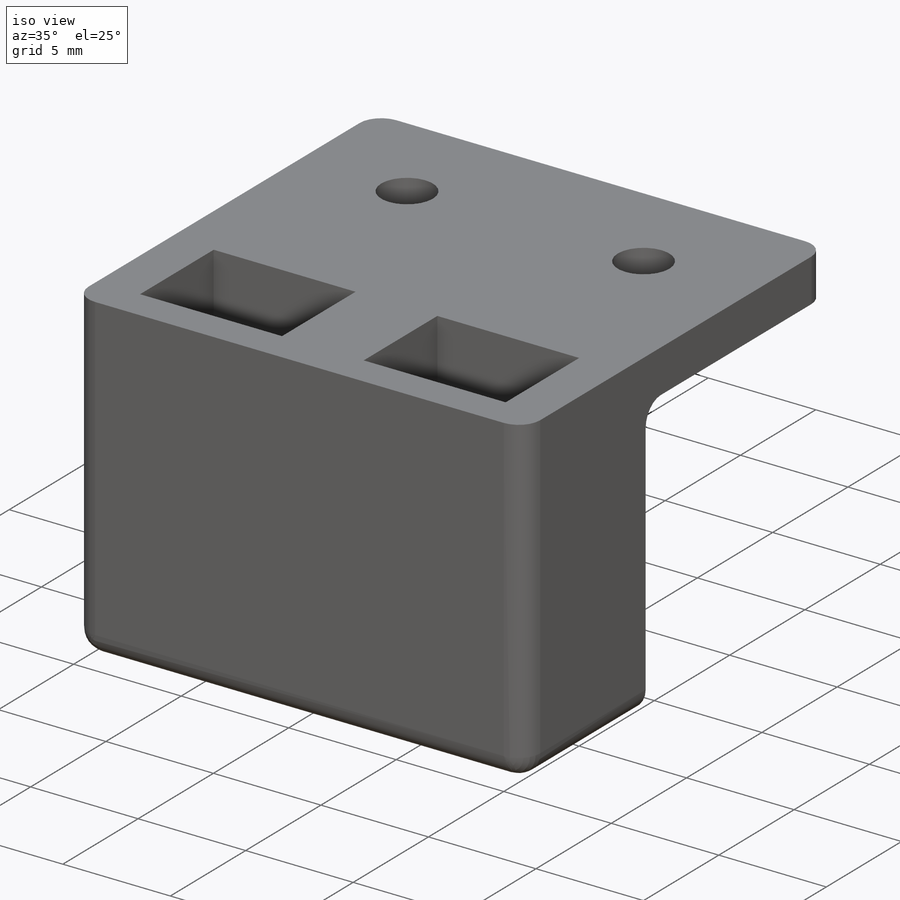
[diagram: iso view]
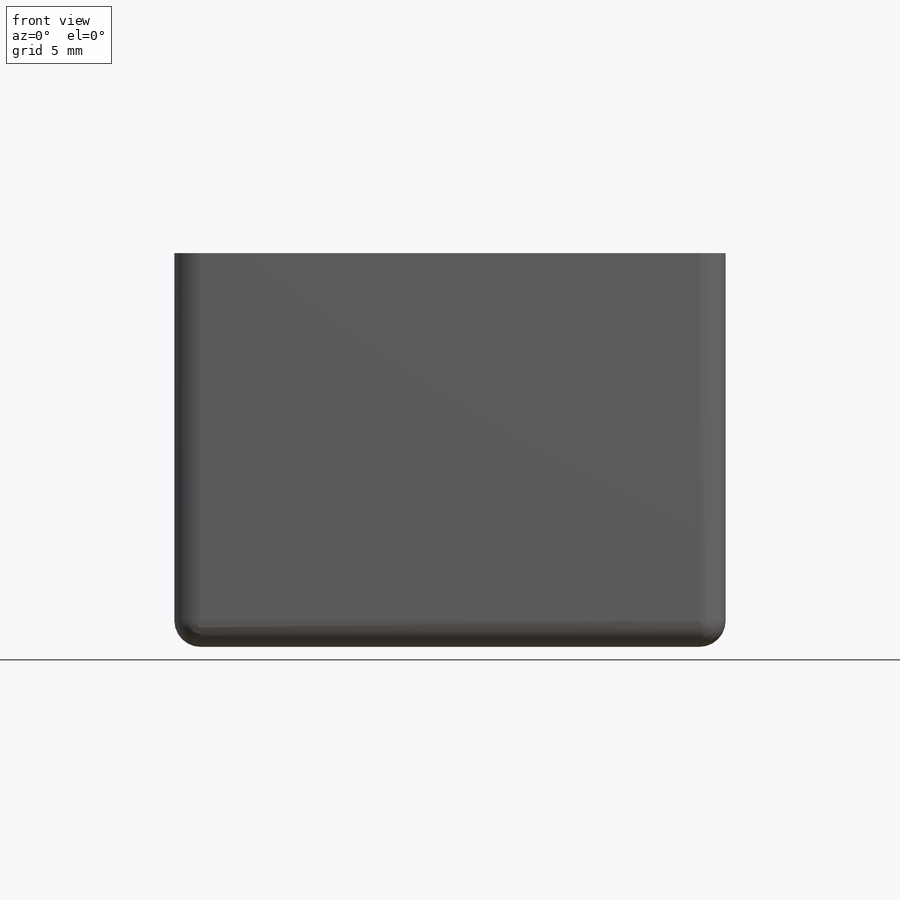
[diagram: front view]
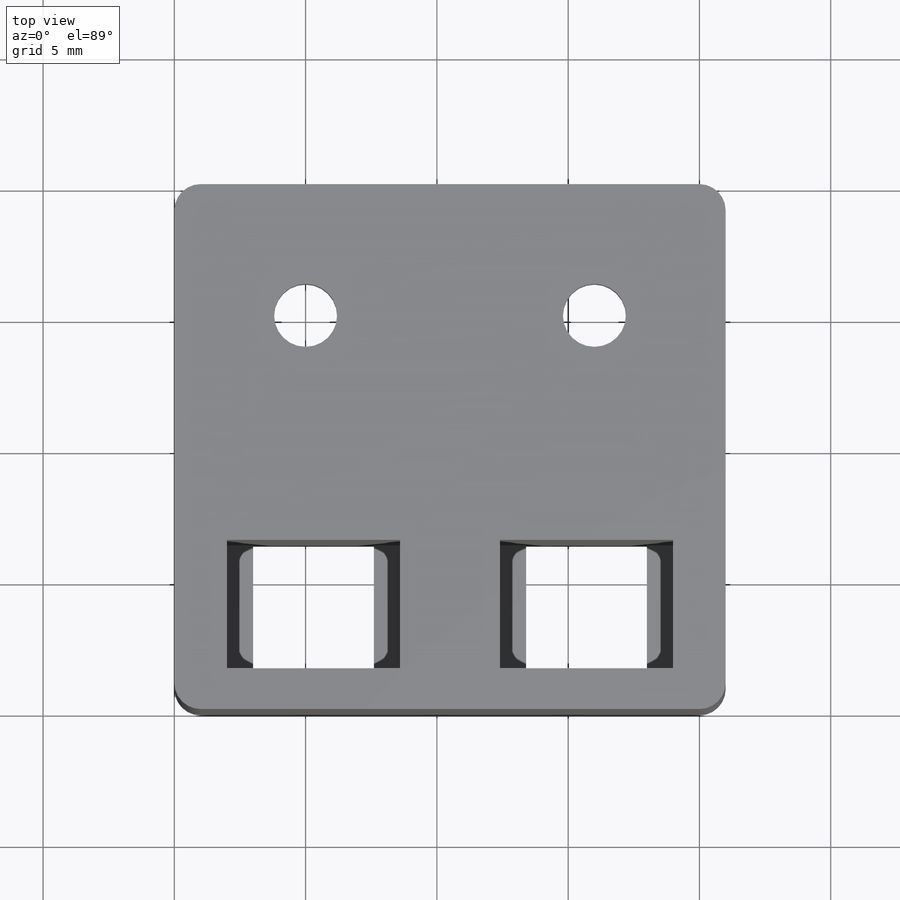
[diagram: top view]
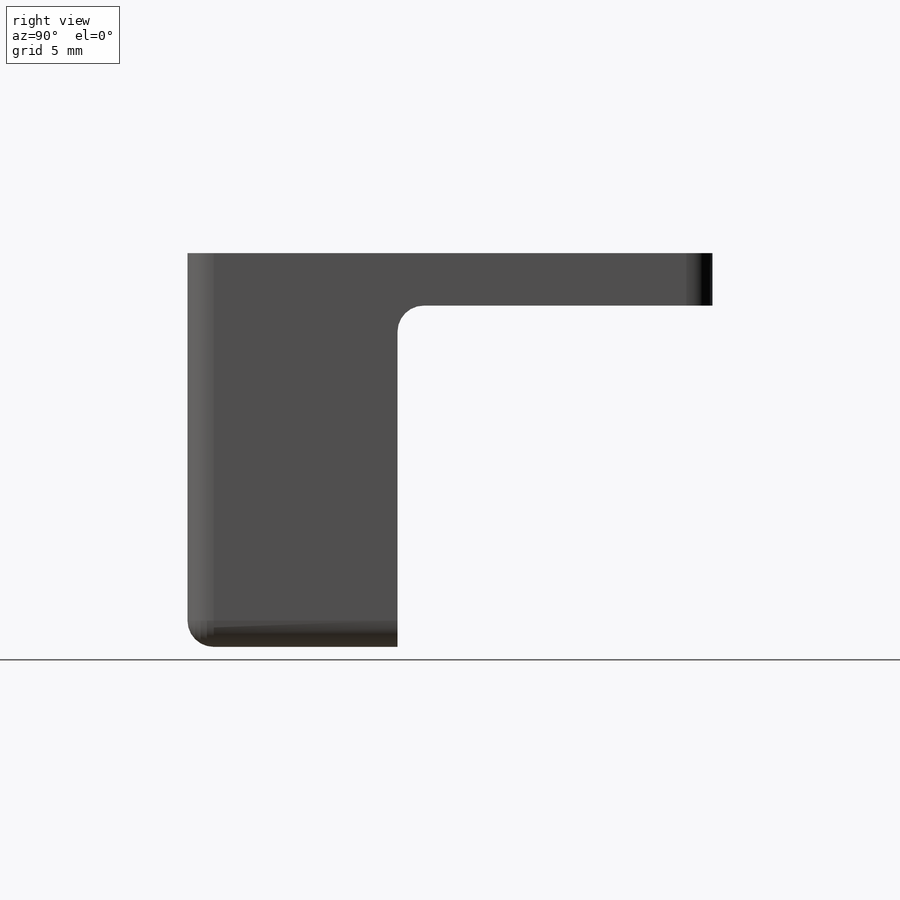
[diagram: right view]
SOLIDWORKS PART (.sldprt)
format: sldprt  version: not decoded by parser v0  size: 249,344 bytes
history: native  units: mm
features: sketch x6, extrude x2, cut_extrude x2, fillet x2, material x1, plane x1, mirror x1, hole x1 (+12 scaffold rows collapsed)
feature tree (28):
  scaffold x12  (default folders/planes/origin — collapsed)
  material  "Material <not specified>"
  sketch  "Sketch1"  dims[c1.D1=~51.577713mm c1.D2=~88.781308mm c2.D1=8.0mm c2.D2=21.0mm]
  extrude  "mainBody"  Depth=15mm
  sketch  "Sketch3"  dims[c1.D1=~5.189844mm c1.D2=~6.249678mm c2.D1=6.6mm c2.D2=4.89mm c2.D3=8.5mm c2.D4=~5.123879mm]
  cut_extrude  "QRDClearance"  Depth=3mm
  sketch  "Sketch4"  dims[c1.D1=4.39mm c1.D2=~4.858806mm c2.D1=1.0mm c2.D2=1.0mm]
  cut_extrude  "visionTunnel"  [1 undecoded]
  plane  "midWidthPlane"
  mirror  "socketMirror"
  fillet  "Fillet1"  Radius=1mm
  sketch  "Sketch5"  dims[c1.D1=~1.822442mm c1.D2=21.0mm c2.D1=2.0mm]
  extrude  "fasteningBracket"  Depth=12mm
  fillet  "Fillet2"  Radius=1mm
  hole  "M2 Clearance Hole1"  Diameter=2.4mm Depth=1.999mm
  sketch  "3DSketch1"  dims[D1=5.0mm D2=5.0mm D3=5.0mm]
  sketch  "Sketch6"  dims[hole-wizard template sketch: 47 standard entries collapsed; hole parameters kept: c15.Hole Depth=1.999mm c15.D3=~14.816244mm c15.Drill Angle=118.0deg]
decode coverage: 12 of 14 modeling features carry decoded parameters
note: ~ marks probable driven/reference dimensions
note: 1 parameter value undecoded
note: suppression state not decoded; provenance and decode notes live in map.json
